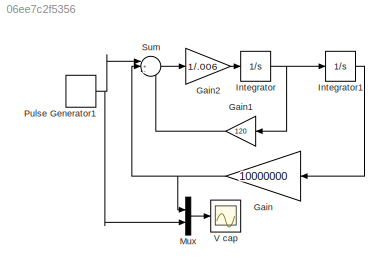
MODEL slx_06ee7c2f5356
KIND model
CONFIG AbsTol = auto
CONFIG EnableMultiTasking = off
CONFIG FixedStep = auto
CONFIG MaxStep = .0000001
CONFIG MinStep = auto
CONFIG RelTol = 1e-3
CONFIG SampleTimeConstraint = Unconstrained
CONFIG SolverName = VariableStepAuto
CONFIG StartTime = 0.0
CONFIG StopTime = .002
BLOCK [Gain] Gain
  Gain = 10000000
  NameLocation = top
BLOCK [Gain] Gain1
  Gain = 120
  NameLocation = top
BLOCK [Gain] Gain2
  Gain = 1/.006
BLOCK [Integrator] Integrator
BLOCK [Integrator] Integrator1
BLOCK [Mux] Mux
  DisplayOption = bar
  Inputs = 2
BLOCK [DiscretePulseGenerator] Pulse Generator1
  Amplitude = 5
  Period = .002
  PulseType = Time based
  PulseWidth = 50
BLOCK [Sum] Sum
  Inputs = |+--
BLOCK [Scope] V cap 
  Floating = off
  NumInputPorts = 1
  ScopeSpecificationString = Simulink.scopes.TimeScopeBlockCfg('CurrentConfiguration', extmgr.ConfigurationSet(extmgr.Configuration('Core','General UI',true),extmgr.Configuration('Core','Source UI',true),extmgr.Configuration('Sources','WiredSimulink',true),extmgr.Configuration('Visuals','Time Domain',true,'SerializedDisplays',{struct('MinYLimReal','-3.45103','MaxYLimReal','8.45103','YLabelReal','','MinYLimMag','0.00000','MaxY...<+1505ch>
LINE Gain1:1 -> Sum:3
LINE Gain2:1 -> Integrator:1
NET Gain:1 -> Mux:1, Sum:2
LINE Integrator1:1 -> Gain:1
NET Integrator:1 -> Gain1:1, Integrator1:1
LINE Mux:1 -> V cap :1
NET Pulse Generator1:1 -> Mux:2, Sum:1
LINE Sum:1 -> Gain2:1
note: NET lines group one-source signal fan-out (src -> all destinations, sorted); 1:1 wires keep LINE
